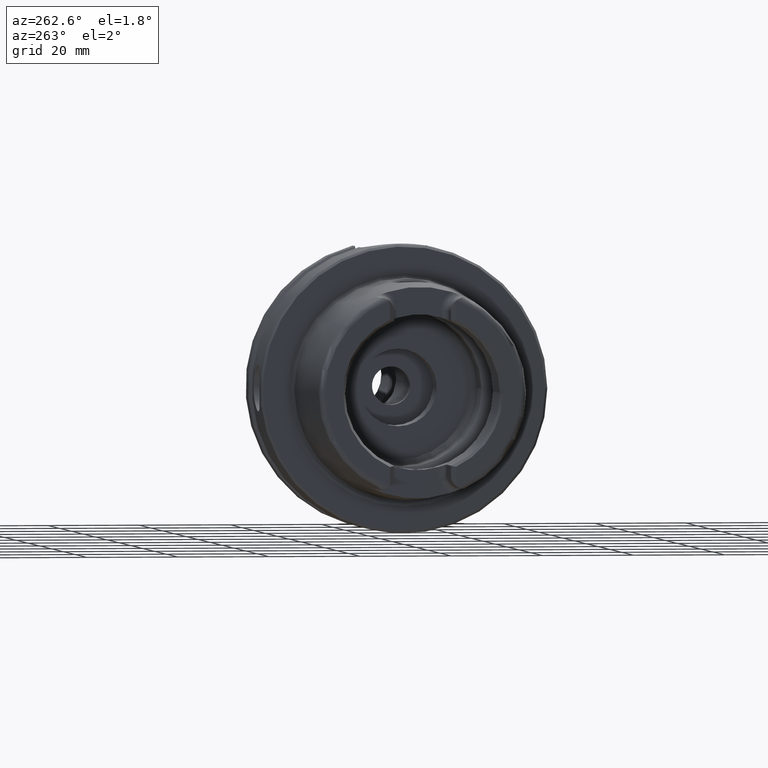
[diagram: clean part render]
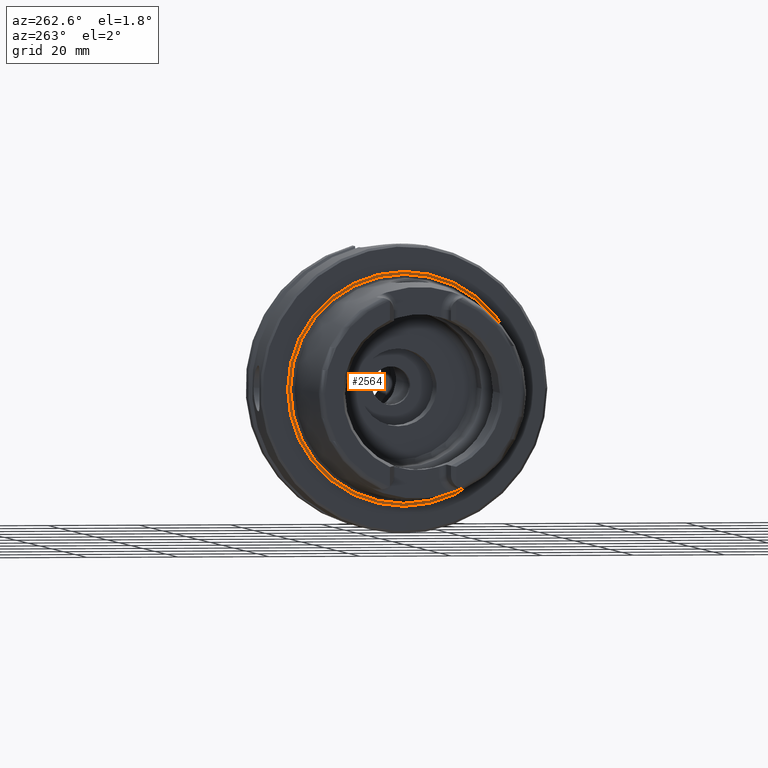
[diagram: same view with one face highlighted and labeled with its STEP entity id]
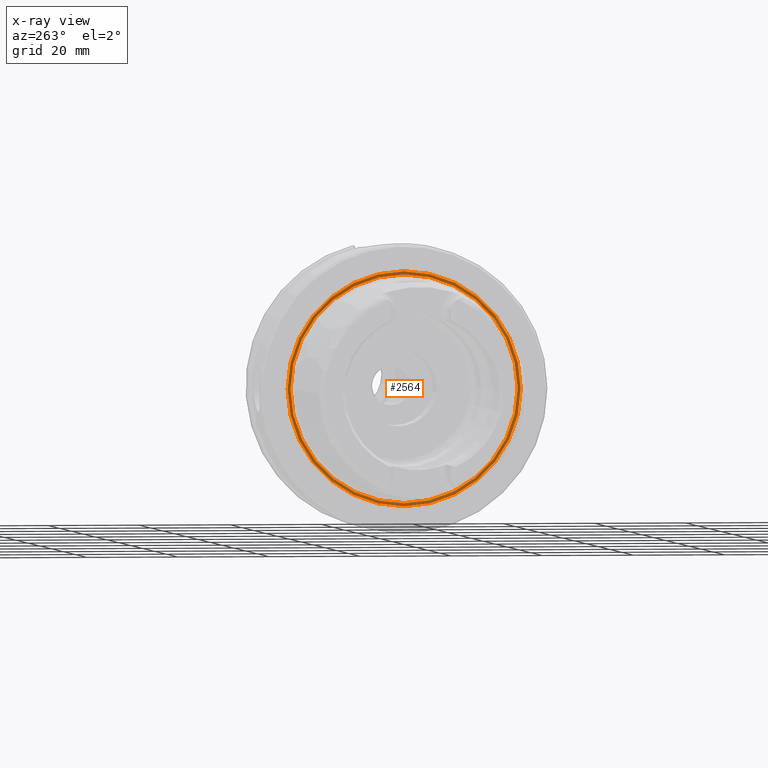
[diagram: x-ray of the same camera — body ghosted, the highlighted face saturated]
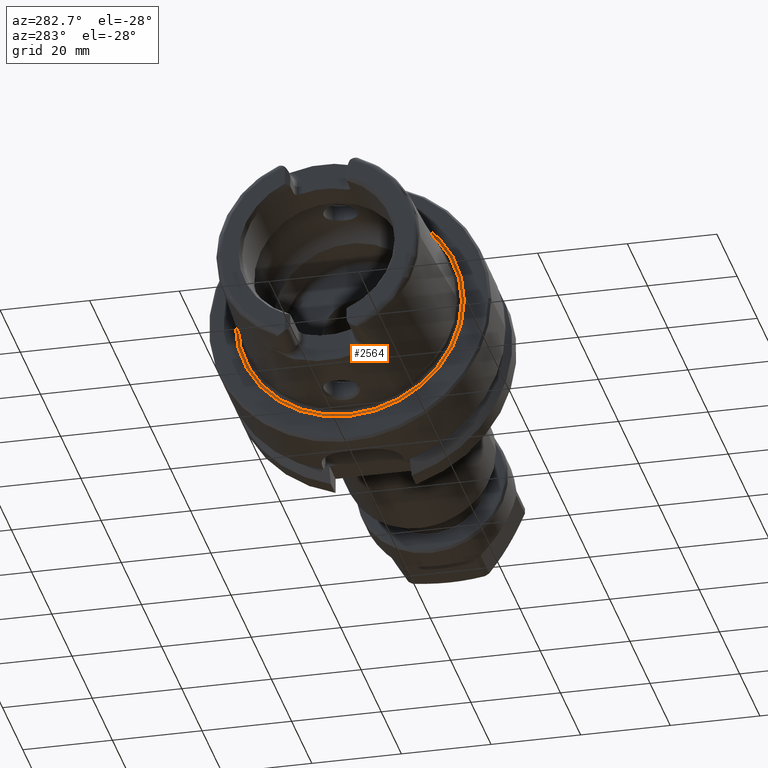
[diagram: same view with one face highlighted and labeled with its STEP entity id]
A machine part, auxiliary view. The second image highlights one B-rep face of the part: STEP entity #2564.
The next image is the same camera in x-ray: the body ghosted, the highlighted face saturated — about 27% of this face is hidden behind the body in this view.
A second angle (auxiliary view) of the same face is appended — the face is thin or edge-on in the first view.
In plain terms, the highlighted conical surface has half-angle 82 deg.
Its self-contained STEP definition (entity closure, byte-faithful):
#388=FACE_OUTER_BOUND('',#547,.T.);
#547=EDGE_LOOP('',(#2269,#2270,#2271,#2272,#2273));
#695=LINE('',#5231,#831);
#831=VECTOR('',#3591,25.2598393130041);
#985=CIRCLE('',#2915,24.9317693424915);
#986=CIRCLE('',#2916,24.9317693424915);
#987=CIRCLE('',#2917,25.5879092835167);
#1219=VERTEX_POINT('',#5226);
#1220=VERTEX_POINT('',#5227);
#1221=VERTEX_POINT('',#5230);
#1578=EDGE_CURVE('',#1219,#1220,#985,.T.);
#1579=EDGE_CURVE('',#1220,#1219,#986,.T.);
#1580=EDGE_CURVE('',#1219,#1221,#695,.T.);
#1581=EDGE_CURVE('',#1221,#1221,#987,.T.);
#2269=ORIENTED_EDGE('',*,*,#1578,.T.);
#2270=ORIENTED_EDGE('',*,*,#1579,.T.);
#2271=ORIENTED_EDGE('',*,*,#1580,.T.);
#2272=ORIENTED_EDGE('',*,*,#1581,.F.);
#2273=ORIENTED_EDGE('',*,*,#1580,.F.);
#2445=CONICAL_SURFACE('',#2914,25.2598393130041,1.43116998663535);
#2564=ADVANCED_FACE('',(#388),#2445,.F.);
#2914=AXIS2_PLACEMENT_3D('',#5225,#3585,#3586);
#2915=AXIS2_PLACEMENT_3D('',#5228,#3587,#3588);
#2916=AXIS2_PLACEMENT_3D('',#5229,#3589,#3590);
#2917=AXIS2_PLACEMENT_3D('',#5232,#3592,#3593);
#3585=DIRECTION('center_axis',(-1.,0.,0.));
#3586=DIRECTION('ref_axis',(0.,1.,0.));
#3587=DIRECTION('center_axis',(1.,0.,0.));
#3588=DIRECTION('ref_axis',(0.,0.,-1.));
#3589=DIRECTION('center_axis',(1.,0.,0.));
#3590=DIRECTION('ref_axis',(0.,0.,-1.));
#3591=DIRECTION('',(-0.139173100960067,-0.99026806874157,-1.2127286206822E-16));
#3592=DIRECTION('center_axis',(1.,0.,0.));
#3593=DIRECTION('ref_axis',(0.,0.,-1.));
#5225=CARTESIAN_POINT('Origin',(0.0461072274966284,0.,0.));
#5226=CARTESIAN_POINT('',(0.092214454993257,-24.9317693424915,-3.05326115223623E-15));
#5227=CARTESIAN_POINT('',(0.0922144549932569,-3.05326115223623E-15,24.9317693424915));
#5228=CARTESIAN_POINT('Origin',(0.0922144549932569,0.,0.));
#5229=CARTESIAN_POINT('Origin',(0.0922144549932569,0.,0.));
#5230=CARTESIAN_POINT('',(-3.55618312575245E-16,-25.5879092835167,-3.13361512009315E-15));
#5231=CARTESIAN_POINT('',(0.0461072274966284,-25.2598393130041,-3.09343813616469E-15));
#5232=CARTESIAN_POINT('Origin',(0.,0.,0.));